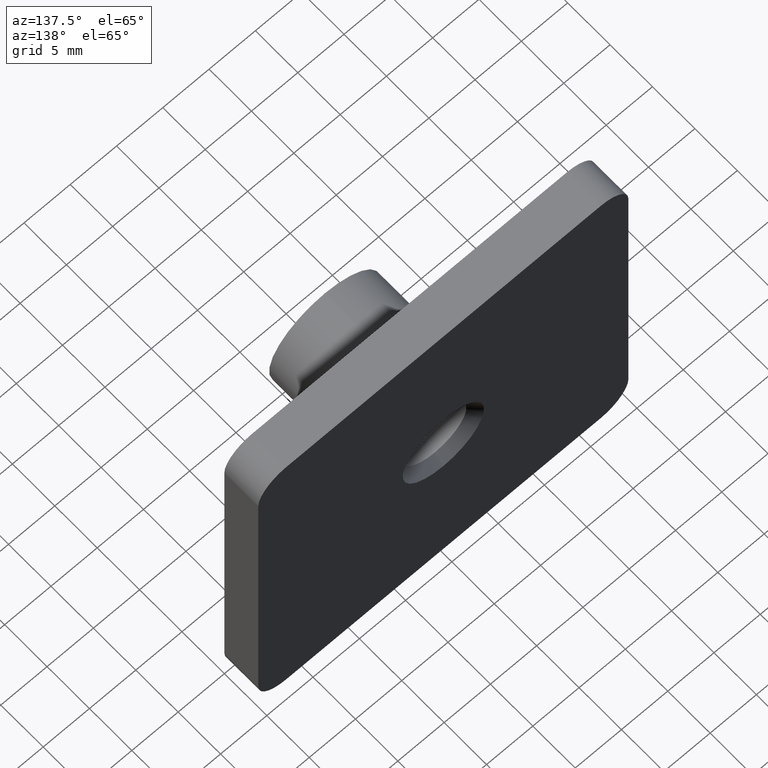
[diagram: clean part render]
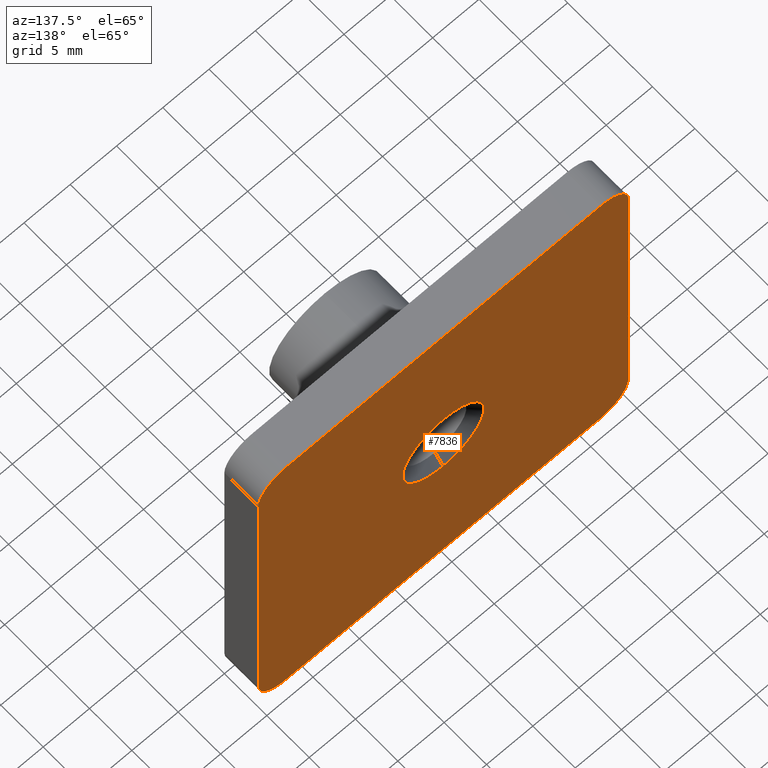
[diagram: same view with one face highlighted and labeled with its STEP entity id]
A machine part, auxiliary view. The second image highlights one B-rep face of the part: STEP entity #7836.
In plain terms, the highlighted planar face has unit normal (0, 1, 0).
Its self-contained STEP definition (entity closure, byte-faithful):
#115 = CARTESIAN_POINT ( 'NONE',  ( 19.99999999999998900, 4.000000000000000000, -17.00000000000000700 ) ) ;
#274 = EDGE_CURVE ( 'NONE', #6460, #5022, #15330, .T. ) ;
#318 = AXIS2_PLACEMENT_3D ( 'NONE', #15753, #1323, #9851 ) ;
#387 = CARTESIAN_POINT ( 'NONE',  ( 16.99999999999999600, 4.000000000000000000, 16.99999999999999600 ) ) ;
#421 = CARTESIAN_POINT ( 'NONE',  ( 17.00000000000000000, 4.000000000000000000, 20.00000000000000000 ) ) ;
#579 = DIRECTION ( 'NONE',  ( 0.0000000000000000000, 1.000000000000000000, 0.0000000000000000000 ) ) ;
#764 = EDGE_CURVE ( 'NONE', #5022, #7574, #15988, .T. ) ;
#1117 = VECTOR ( 'NONE', #8677, 1000.000000000000000 ) ;
#1323 = DIRECTION ( 'NONE',  ( 0.0000000000000000000, 1.000000000000000000, 0.0000000000000000000 ) ) ;
#1599 = EDGE_CURVE ( 'NONE', #9173, #11000, #6645, .T. ) ;
#1602 = VERTEX_POINT ( 'NONE', #6982 ) ;
#2163 = CIRCLE ( 'NONE', #5223, 4.399999999999994100 ) ;
#2466 = CARTESIAN_POINT ( 'NONE',  ( 16.99999999999999300, 4.000000000000000000, -20.00000000000000700 ) ) ;
#2648 = CARTESIAN_POINT ( 'NONE',  ( 19.99999999999998900, 4.000000000000000000, -20.00000000000000700 ) ) ;
#2973 = EDGE_LOOP ( 'NONE', ( #8864, #11837 ) ) ;
#3175 = AXIS2_PLACEMENT_3D ( 'NONE', #12837, #4121, #10020 ) ;
#3823 = CIRCLE ( 'NONE', #3985, 2.999999999999999100 ) ;
#3985 = AXIS2_PLACEMENT_3D ( 'NONE', #387, #18081, #11962 ) ;
#4121 = DIRECTION ( 'NONE',  ( -0.0000000000000000000, -1.000000000000000000, -0.0000000000000000000 ) ) ;
#4187 = EDGE_CURVE ( 'NONE', #4362, #6460, #4329, .T. ) ;
#4329 = LINE ( 'NONE', #5697, #1117 ) ;
#4351 = DIRECTION ( 'NONE',  ( 1.000000000000000000, 0.0000000000000000000, 0.0000000000000000000 ) ) ;
#4362 = VERTEX_POINT ( 'NONE', #7654 ) ;
#4501 = CARTESIAN_POINT ( 'NONE',  ( -17.00000000000001100, 4.000000000000000000, -20.00000000000000700 ) ) ;
#4848 = VECTOR ( 'NONE', #8192, 1000.000000000000000 ) ;
#4858 = DIRECTION ( 'NONE',  ( 0.0000000000000000000, -0.0000000000000000000, 1.000000000000000000 ) ) ;
#4865 = EDGE_CURVE ( 'NONE', #11000, #4362, #9314, .T. ) ;
#5022 = VERTEX_POINT ( 'NONE', #11507 ) ;
#5223 = AXIS2_PLACEMENT_3D ( 'NONE', #18385, #5593, #9831 ) ;
#5441 = AXIS2_PLACEMENT_3D ( 'NONE', #7887, #579, #16713 ) ;
#5509 = EDGE_LOOP ( 'NONE', ( #16282, #10066, #6712, #11337, #14353, #11853, #14977, #6368 ) ) ;
#5593 = DIRECTION ( 'NONE',  ( -0.0000000000000000000, -1.000000000000000000, -0.0000000000000000000 ) ) ;
#5697 = CARTESIAN_POINT ( 'NONE',  ( -20.00000000000001100, 4.000000000000000000, -20.00000000000000700 ) ) ;
#6131 = EDGE_CURVE ( 'NONE', #17671, #14989, #10808, .T. ) ;
#6368 = ORIENTED_EDGE ( 'NONE', *, *, #4865, .T. ) ;
#6460 = VERTEX_POINT ( 'NONE', #11360 ) ;
#6645 = LINE ( 'NONE', #16833, #4848 ) ;
#6712 = ORIENTED_EDGE ( 'NONE', *, *, #764, .T. ) ;
#6982 = CARTESIAN_POINT ( 'NONE',  ( 0.0000000000000000000, 4.000000000000000000, 4.399999999999994100 ) ) ;
#7030 = EDGE_CURVE ( 'NONE', #7574, #17671, #3823, .T. ) ;
#7574 = VERTEX_POINT ( 'NONE', #421 ) ;
#7654 = CARTESIAN_POINT ( 'NONE',  ( -20.00000000000001100, 4.000000000000000000, -17.00000000000000700 ) ) ;
#7836 = ADVANCED_FACE ( 'NONE', ( #17857, #18296 ), #14650, .T. ) ;
#7845 = AXIS2_PLACEMENT_3D ( 'NONE', #16975, #17218, #14052 ) ;
#7873 = CARTESIAN_POINT ( 'NONE',  ( 5.388445916248347100E-016, 4.000000000000000000, -4.399999999999994100 ) ) ;
#7887 = CARTESIAN_POINT ( 'NONE',  ( -17.00000000000001100, 4.000000000000000000, -17.00000000000000700 ) ) ;
#8192 = DIRECTION ( 'NONE',  ( -1.000000000000000000, -0.0000000000000000000, -0.0000000000000000000 ) ) ;
#8331 = VECTOR ( 'NONE', #4351, 1000.000000000000000 ) ;
#8461 = CIRCLE ( 'NONE', #318, 2.999999999999999100 ) ;
#8677 = DIRECTION ( 'NONE',  ( 1.734723475976806800E-016, 0.0000000000000000000, 1.000000000000000000 ) ) ;
#8864 = ORIENTED_EDGE ( 'NONE', *, *, #15814, .T. ) ;
#9173 = VERTEX_POINT ( 'NONE', #2466 ) ;
#9314 = CIRCLE ( 'NONE', #5441, 2.999999999999999100 ) ;
#9831 = DIRECTION ( 'NONE',  ( 0.0000000000000000000, 0.0000000000000000000, 1.000000000000000000 ) ) ;
#9851 = DIRECTION ( 'NONE',  ( 0.0000000000000000000, 0.0000000000000000000, 1.000000000000000000 ) ) ;
#9916 = VECTOR ( 'NONE', #10079, 1000.000000000000000 ) ;
#10020 = DIRECTION ( 'NONE',  ( 0.0000000000000000000, 0.0000000000000000000, 1.000000000000000000 ) ) ;
#10066 = ORIENTED_EDGE ( 'NONE', *, *, #274, .T. ) ;
#10079 = DIRECTION ( 'NONE',  ( -1.734723475976806800E-016, -0.0000000000000000000, -1.000000000000000000 ) ) ;
#10513 = CARTESIAN_POINT ( 'NONE',  ( 19.99999999999999600, 4.000000000000000000, 16.99999999999999600 ) ) ;
#10550 = CIRCLE ( 'NONE', #3175, 4.399999999999994100 ) ;
#10808 = LINE ( 'NONE', #2648, #9916 ) ;
#11000 = VERTEX_POINT ( 'NONE', #4501 ) ;
#11337 = ORIENTED_EDGE ( 'NONE', *, *, #7030, .T. ) ;
#11360 = CARTESIAN_POINT ( 'NONE',  ( -20.00000000000000400, 4.000000000000000000, 16.99999999999999600 ) ) ;
#11475 = CARTESIAN_POINT ( 'NONE',  ( -20.00000000000000400, 4.000000000000000000, 20.00000000000000000 ) ) ;
#11507 = CARTESIAN_POINT ( 'NONE',  ( -17.00000000000000400, 4.000000000000000000, 20.00000000000000000 ) ) ;
#11837 = ORIENTED_EDGE ( 'NONE', *, *, #13471, .T. ) ;
#11853 = ORIENTED_EDGE ( 'NONE', *, *, #18191, .T. ) ;
#11962 = DIRECTION ( 'NONE',  ( 0.0000000000000000000, 0.0000000000000000000, 1.000000000000000000 ) ) ;
#12837 = CARTESIAN_POINT ( 'NONE',  ( 0.0000000000000000000, 4.000000000000000000, 0.0000000000000000000 ) ) ;
#13061 = AXIS2_PLACEMENT_3D ( 'NONE', #16260, #16327, #4858 ) ;
#13471 = EDGE_CURVE ( 'NONE', #16587, #1602, #2163, .T. ) ;
#14052 = DIRECTION ( 'NONE',  ( 0.0000000000000000000, 0.0000000000000000000, 1.000000000000000000 ) ) ;
#14353 = ORIENTED_EDGE ( 'NONE', *, *, #6131, .T. ) ;
#14650 = PLANE ( 'NONE',  #13061 ) ;
#14977 = ORIENTED_EDGE ( 'NONE', *, *, #1599, .T. ) ;
#14989 = VERTEX_POINT ( 'NONE', #115 ) ;
#15330 = CIRCLE ( 'NONE', #7845, 2.999999999999999100 ) ;
#15753 = CARTESIAN_POINT ( 'NONE',  ( 16.99999999999999300, 4.000000000000000000, -17.00000000000000700 ) ) ;
#15814 = EDGE_CURVE ( 'NONE', #1602, #16587, #10550, .T. ) ;
#15988 = LINE ( 'NONE', #11475, #8331 ) ;
#16260 = CARTESIAN_POINT ( 'NONE',  ( 0.0000000000000000000, 4.000000000000000000, 0.0000000000000000000 ) ) ;
#16282 = ORIENTED_EDGE ( 'NONE', *, *, #4187, .T. ) ;
#16327 = DIRECTION ( 'NONE',  ( 0.0000000000000000000, 1.000000000000000000, 0.0000000000000000000 ) ) ;
#16587 = VERTEX_POINT ( 'NONE', #7873 ) ;
#16713 = DIRECTION ( 'NONE',  ( 0.0000000000000000000, 0.0000000000000000000, 1.000000000000000000 ) ) ;
#16833 = CARTESIAN_POINT ( 'NONE',  ( -20.00000000000001100, 4.000000000000000000, -20.00000000000000700 ) ) ;
#16975 = CARTESIAN_POINT ( 'NONE',  ( -17.00000000000000400, 4.000000000000000000, 17.00000000000000000 ) ) ;
#17218 = DIRECTION ( 'NONE',  ( 0.0000000000000000000, 1.000000000000000000, 0.0000000000000000000 ) ) ;
#17671 = VERTEX_POINT ( 'NONE', #10513 ) ;
#17857 = FACE_BOUND ( 'NONE', #2973, .T. ) ;
#18081 = DIRECTION ( 'NONE',  ( 0.0000000000000000000, 1.000000000000000000, 0.0000000000000000000 ) ) ;
#18191 = EDGE_CURVE ( 'NONE', #14989, #9173, #8461, .T. ) ;
#18296 = FACE_OUTER_BOUND ( 'NONE', #5509, .T. ) ;
#18385 = CARTESIAN_POINT ( 'NONE',  ( 0.0000000000000000000, 4.000000000000000000, 0.0000000000000000000 ) ) ;